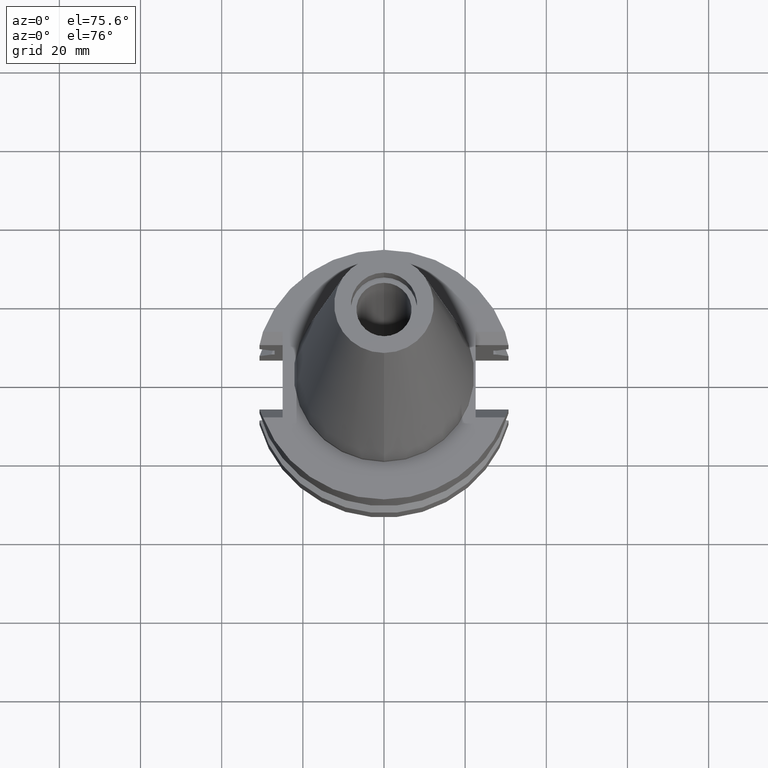
[diagram: clean part render]
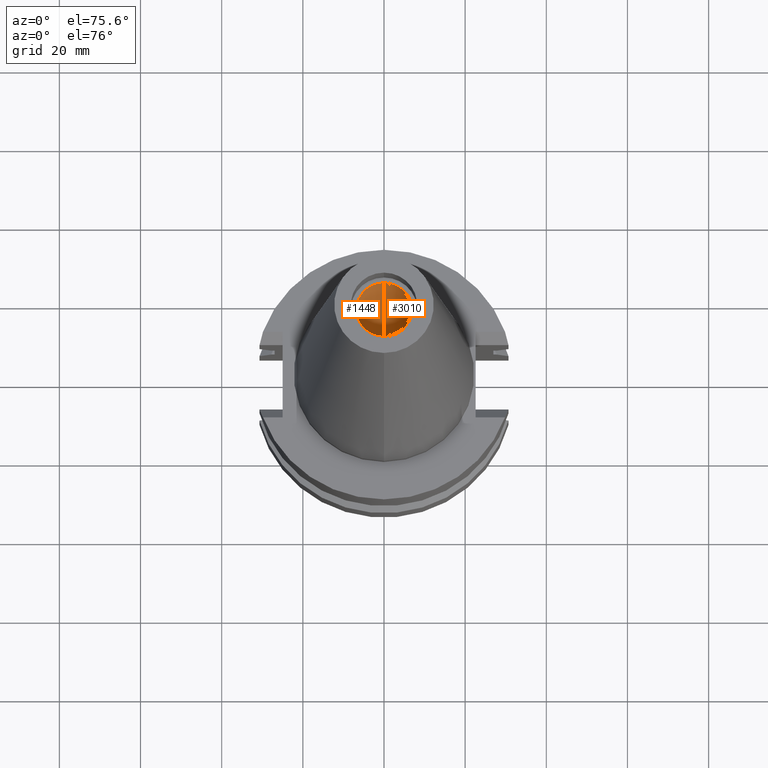
[diagram: same view with one multi-face feature highlighted, each face labeled with its STEP entity id]
A machine part, auxiliary view. The highlighted faces form ONE feature: a constant-radius fillet chain: 2 tangent blend faces with common blend radius 6.8 mm. The faces share edges in the B-rep.
Their STEP definitions:
[1] entity #3010 (Cylinder):
#38 = ORIENTED_EDGE ( 'NONE', *, *, #228, .T. ) ;
#57 = VERTEX_POINT ( 'NONE', #2079 ) ;
#93 = CARTESIAN_POINT ( 'NONE',  ( 0.0000000000000000000, 6.799999999999999822, -4.263256414560999963E-14 ) ) ;
#124 = EDGE_CURVE ( 'NONE', #1124, #57, #161, .T. ) ;
#161 = LINE ( 'NONE', #93, #1656 ) ;
#228 = EDGE_CURVE ( 'NONE', #2110, #57, #2803, .T. ) ;
#418 = CARTESIAN_POINT ( 'NONE',  ( 0.0000000000000000000, 2.153878174169999899E-14, 63.46999999999999886 ) ) ;
#562 = LINE ( 'NONE', #1300, #2741 ) ;
#582 = DIRECTION ( 'NONE',  ( 0.0000000000000000000, 0.0000000000000000000, 1.000000000000000000 ) ) ;
#779 = FACE_OUTER_BOUND ( 'NONE', #1679, .T. ) ;
#1035 = CYLINDRICAL_SURFACE ( 'NONE', #1091, 6.799999999999999822 ) ;
#1091 = AXIS2_PLACEMENT_3D ( 'NONE', #2286, #1762, #2007 ) ;
#1124 = VERTEX_POINT ( 'NONE', #1715 ) ;
#1129 = DIRECTION ( 'NONE',  ( 0.0000000000000000000, 0.0000000000000000000, 1.000000000000000000 ) ) ;
#1162 = DIRECTION ( 'NONE',  ( 0.0000000000000000000, -1.000000000000000000, 0.0000000000000000000 ) ) ;
#1300 = CARTESIAN_POINT ( 'NONE',  ( 0.0000000000000000000, -6.799999999999999822, -4.263256414560999963E-14 ) ) ;
#1318 = CARTESIAN_POINT ( 'NONE',  ( 0.0000000000000000000, -6.799999999999999822, -4.263256414560999963E-14 ) ) ;
#1356 = VERTEX_POINT ( 'NONE', #1318 ) ;
#1371 = ORIENTED_EDGE ( 'NONE', *, *, #124, .F. ) ;
#1407 = AXIS2_PLACEMENT_3D ( 'NONE', #418, #1876, #1162 ) ;
#1413 = EDGE_CURVE ( 'NONE', #1356, #2110, #562, .T. ) ;
#1502 = CIRCLE ( 'NONE', #2831, 6.799999999999999822 ) ;
#1607 = EDGE_CURVE ( 'NONE', #1356, #1124, #1502, .T. ) ;
#1624 = CARTESIAN_POINT ( 'NONE',  ( 0.0000000000000000000, -6.799999999999999822, 63.46999999999999886 ) ) ;
#1656 = VECTOR ( 'NONE', #2061, 1000.000000000000000 ) ;
#1679 = EDGE_LOOP ( 'NONE', ( #2153, #2347, #38, #1371 ) ) ;
#1715 = CARTESIAN_POINT ( 'NONE',  ( 0.0000000000000000000, 6.799999999999999822, -4.263256414560999963E-14 ) ) ;
#1762 = DIRECTION ( 'NONE',  ( 0.0000000000000000000, 0.0000000000000000000, -1.000000000000000000 ) ) ;
#1876 = DIRECTION ( 'NONE',  ( 0.0000000000000000000, 0.0000000000000000000, 1.000000000000000000 ) ) ;
#2007 = DIRECTION ( 'NONE',  ( 0.0000000000000000000, -1.000000000000000000, 0.0000000000000000000 ) ) ;
#2055 = DIRECTION ( 'NONE',  ( 0.0000000000000000000, -1.000000000000000000, 0.0000000000000000000 ) ) ;
#2061 = DIRECTION ( 'NONE',  ( 0.0000000000000000000, 0.0000000000000000000, 1.000000000000000000 ) ) ;
#2079 = CARTESIAN_POINT ( 'NONE',  ( 0.0000000000000000000, 6.799999999999999822, 63.46999999999999886 ) ) ;
#2091 = CARTESIAN_POINT ( 'NONE',  ( 0.0000000000000000000, 2.153878174169999899E-14, -4.263256414560999963E-14 ) ) ;
#2110 = VERTEX_POINT ( 'NONE', #1624 ) ;
#2153 = ORIENTED_EDGE ( 'NONE', *, *, #1607, .F. ) ;
#2286 = CARTESIAN_POINT ( 'NONE',  ( 0.0000000000000000000, 2.153878174169999899E-14, 75.87749999999999773 ) ) ;
#2347 = ORIENTED_EDGE ( 'NONE', *, *, #1413, .T. ) ;
#2741 = VECTOR ( 'NONE', #582, 1000.000000000000000 ) ;
#2803 = CIRCLE ( 'NONE', #1407, 6.799999999999999822 ) ;
#2831 = AXIS2_PLACEMENT_3D ( 'NONE', #2091, #1129, #2055 ) ;
#3010 = ADVANCED_FACE ( 'NONE', ( #779 ), #1035, .F. ) ;
[2] entity #1448 (Cylinder):
#57 = VERTEX_POINT ( 'NONE', #2079 ) ;
#93 = CARTESIAN_POINT ( 'NONE',  ( 0.0000000000000000000, 6.799999999999999822, -4.263256414560999963E-14 ) ) ;
#124 = EDGE_CURVE ( 'NONE', #1124, #57, #161, .T. ) ;
#161 = LINE ( 'NONE', #93, #1656 ) ;
#216 = EDGE_CURVE ( 'NONE', #57, #2110, #1965, .T. ) ;
#270 = EDGE_CURVE ( 'NONE', #1356, #1124, #2927, .T. ) ;
#348 = FACE_OUTER_BOUND ( 'NONE', #2708, .T. ) ;
#483 = ORIENTED_EDGE ( 'NONE', *, *, #216, .T. ) ;
#562 = LINE ( 'NONE', #1300, #2741 ) ;
#582 = DIRECTION ( 'NONE',  ( 0.0000000000000000000, 0.0000000000000000000, 1.000000000000000000 ) ) ;
#585 = AXIS2_PLACEMENT_3D ( 'NONE', #2003, #2198, #1677 ) ;
#762 = DIRECTION ( 'NONE',  ( 0.0000000000000000000, 0.0000000000000000000, -1.000000000000000000 ) ) ;
#803 = CYLINDRICAL_SURFACE ( 'NONE', #3149, 6.799999999999999822 ) ;
#1124 = VERTEX_POINT ( 'NONE', #1715 ) ;
#1221 = DIRECTION ( 'NONE',  ( 0.0000000000000000000, -1.000000000000000000, 0.0000000000000000000 ) ) ;
#1275 = ORIENTED_EDGE ( 'NONE', *, *, #270, .T. ) ;
#1300 = CARTESIAN_POINT ( 'NONE',  ( 0.0000000000000000000, -6.799999999999999822, -4.263256414560999963E-14 ) ) ;
#1318 = CARTESIAN_POINT ( 'NONE',  ( 0.0000000000000000000, -6.799999999999999822, -4.263256414560999963E-14 ) ) ;
#1324 = AXIS2_PLACEMENT_3D ( 'NONE', #1430, #1401, #1221 ) ;
#1356 = VERTEX_POINT ( 'NONE', #1318 ) ;
#1401 = DIRECTION ( 'NONE',  ( 0.0000000000000000000, 0.0000000000000000000, -1.000000000000000000 ) ) ;
#1413 = EDGE_CURVE ( 'NONE', #1356, #2110, #562, .T. ) ;
#1430 = CARTESIAN_POINT ( 'NONE',  ( 0.0000000000000000000, 2.153878174169999899E-14, -4.263256414560999963E-14 ) ) ;
#1448 = ADVANCED_FACE ( 'NONE', ( #348 ), #803, .F. ) ;
#1520 = CARTESIAN_POINT ( 'NONE',  ( 0.0000000000000000000, 2.153878174169999899E-14, 75.87749999999999773 ) ) ;
#1624 = CARTESIAN_POINT ( 'NONE',  ( 0.0000000000000000000, -6.799999999999999822, 63.46999999999999886 ) ) ;
#1656 = VECTOR ( 'NONE', #2061, 1000.000000000000000 ) ;
#1677 = DIRECTION ( 'NONE',  ( 0.0000000000000000000, 1.000000000000000000, 0.0000000000000000000 ) ) ;
#1715 = CARTESIAN_POINT ( 'NONE',  ( 0.0000000000000000000, 6.799999999999999822, -4.263256414560999963E-14 ) ) ;
#1740 = ORIENTED_EDGE ( 'NONE', *, *, #124, .T. ) ;
#1965 = CIRCLE ( 'NONE', #585, 6.799999999999999822 ) ;
#2003 = CARTESIAN_POINT ( 'NONE',  ( 0.0000000000000000000, 2.153878174169999899E-14, 63.46999999999999886 ) ) ;
#2061 = DIRECTION ( 'NONE',  ( 0.0000000000000000000, 0.0000000000000000000, 1.000000000000000000 ) ) ;
#2079 = CARTESIAN_POINT ( 'NONE',  ( 0.0000000000000000000, 6.799999999999999822, 63.46999999999999886 ) ) ;
#2110 = VERTEX_POINT ( 'NONE', #1624 ) ;
#2198 = DIRECTION ( 'NONE',  ( 0.0000000000000000000, 0.0000000000000000000, 1.000000000000000000 ) ) ;
#2520 = ORIENTED_EDGE ( 'NONE', *, *, #1413, .F. ) ;
#2708 = EDGE_LOOP ( 'NONE', ( #483, #2520, #1275, #1740 ) ) ;
#2741 = VECTOR ( 'NONE', #582, 1000.000000000000000 ) ;
#2777 = DIRECTION ( 'NONE',  ( 0.0000000000000000000, -1.000000000000000000, 0.0000000000000000000 ) ) ;
#2927 = CIRCLE ( 'NONE', #1324, 6.799999999999999822 ) ;
#3149 = AXIS2_PLACEMENT_3D ( 'NONE', #1520, #762, #2777 ) ;